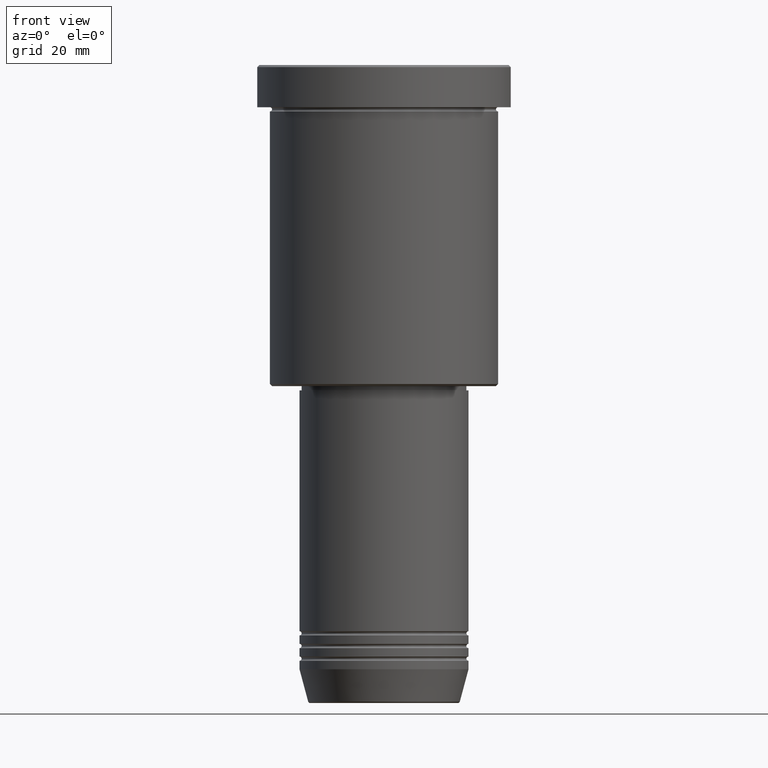
[diagram: clean part render]
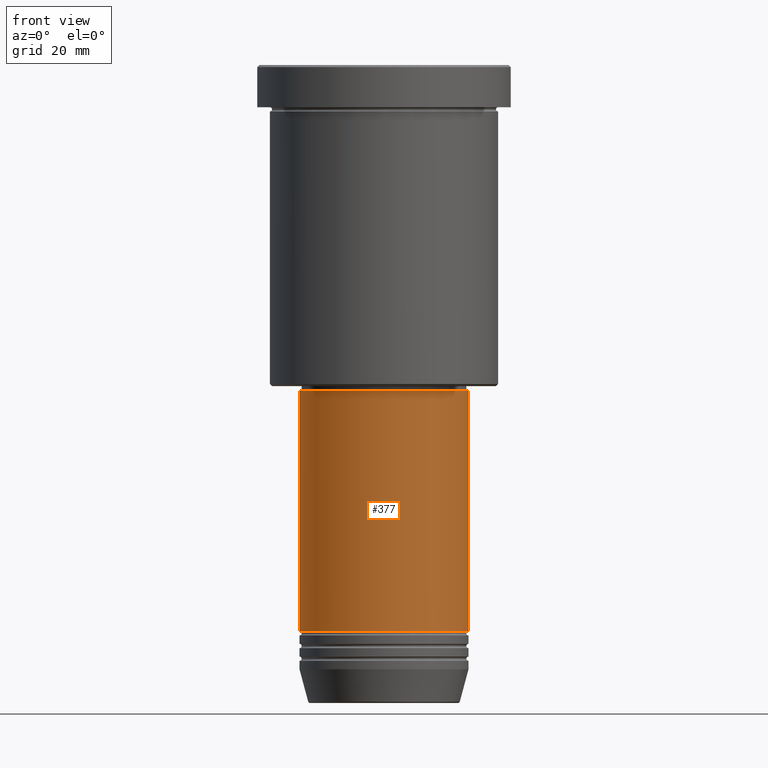
[diagram: same view with one face highlighted and labeled with its STEP entity id]
A machine part, front view. The second image highlights one B-rep face of the part: STEP entity #377.
In plain terms, the highlighted cylindrical surface (partial cylindrical patch) has radius 20 mm, axis along (-0, -0, 1).
Its self-contained STEP definition (entity closure, byte-faithful):
#9 = CIRCLE ( 'NONE', #1174, 20.00000000000000000 ) ;
#48 = AXIS2_PLACEMENT_3D ( 'NONE', #260, #64, #670 ) ;
#58 = CARTESIAN_POINT ( 'NONE',  ( -20.00000000000000000, 2.449293598294706513E-15, -133.9999999999999432 ) ) ;
#64 = DIRECTION ( 'NONE',  ( -0.000000000000000000, -0.000000000000000000, 1.000000000000000000 ) ) ;
#85 = LINE ( 'NONE', #798, #442 ) ;
#123 = ORIENTED_EDGE ( 'NONE', *, *, #742, .F. ) ;
#166 = DIRECTION ( 'NONE',  ( 1.000000000000000000, 0.000000000000000000, 0.000000000000000000 ) ) ;
#223 = EDGE_CURVE ( 'NONE', #856, #553, #452, .T. ) ;
#243 = CARTESIAN_POINT ( 'NONE',  ( 0.000000000000000000, 0.000000000000000000, -76.99999999999998579 ) ) ;
#260 = CARTESIAN_POINT ( 'NONE',  ( 0.000000000000000000, 0.000000000000000000, 0.000000000000000000 ) ) ;
#324 = CARTESIAN_POINT ( 'NONE',  ( -20.00000000000000000, 2.449293598294706513E-15, -76.99999999999998579 ) ) ;
#344 = DIRECTION ( 'NONE',  ( -0.000000000000000000, -0.000000000000000000, 1.000000000000000000 ) ) ;
#349 = VECTOR ( 'NONE', #1164, 1000.000000000000000 ) ;
#377 = ADVANCED_FACE ( 'NONE', ( #428 ), #682, .T. ) ;
#428 = FACE_OUTER_BOUND ( 'NONE', #511, .T. ) ;
#442 = VECTOR ( 'NONE', #623, 1000.000000000000000 ) ;
#452 = LINE ( 'NONE', #1180, #349 ) ;
#493 = DIRECTION ( 'NONE',  ( 1.000000000000000000, 0.000000000000000000, 0.000000000000000000 ) ) ;
#511 = EDGE_LOOP ( 'NONE', ( #929, #716, #898, #123 ) ) ;
#553 = VERTEX_POINT ( 'NONE', #324 ) ;
#608 = DIRECTION ( 'NONE',  ( -0.000000000000000000, -0.000000000000000000, 1.000000000000000000 ) ) ;
#609 = VERTEX_POINT ( 'NONE', #1051 ) ;
#623 = DIRECTION ( 'NONE',  ( -0.000000000000000000, -0.000000000000000000, 1.000000000000000000 ) ) ;
#670 = DIRECTION ( 'NONE',  ( 1.000000000000000000, 0.000000000000000000, 0.000000000000000000 ) ) ;
#682 = CYLINDRICAL_SURFACE ( 'NONE', #48, 20.00000000000000000 ) ;
#691 = CIRCLE ( 'NONE', #891, 20.00000000000000000 ) ;
#716 = ORIENTED_EDGE ( 'NONE', *, *, #1005, .T. ) ;
#742 = EDGE_CURVE ( 'NONE', #553, #609, #9, .T. ) ;
#798 = CARTESIAN_POINT ( 'NONE',  ( 20.00000000000000000, 0.000000000000000000, 0.000000000000000000 ) ) ;
#856 = VERTEX_POINT ( 'NONE', #58 ) ;
#859 = VERTEX_POINT ( 'NONE', #956 ) ;
#891 = AXIS2_PLACEMENT_3D ( 'NONE', #980, #608, #166 ) ;
#898 = ORIENTED_EDGE ( 'NONE', *, *, #1032, .T. ) ;
#929 = ORIENTED_EDGE ( 'NONE', *, *, #223, .F. ) ;
#956 = CARTESIAN_POINT ( 'NONE',  ( 20.00000000000000000, 0.000000000000000000, -133.9999999999999432 ) ) ;
#980 = CARTESIAN_POINT ( 'NONE',  ( 0.000000000000000000, 0.000000000000000000, -133.9999999999999432 ) ) ;
#1005 = EDGE_CURVE ( 'NONE', #856, #859, #691, .T. ) ;
#1032 = EDGE_CURVE ( 'NONE', #859, #609, #85, .T. ) ;
#1051 = CARTESIAN_POINT ( 'NONE',  ( 20.00000000000000000, 0.000000000000000000, -76.99999999999998579 ) ) ;
#1164 = DIRECTION ( 'NONE',  ( -0.000000000000000000, -0.000000000000000000, 1.000000000000000000 ) ) ;
#1174 = AXIS2_PLACEMENT_3D ( 'NONE', #243, #344, #493 ) ;
#1180 = CARTESIAN_POINT ( 'NONE',  ( -20.00000000000000000, 2.449293598294706513E-15, 0.000000000000000000 ) ) ;